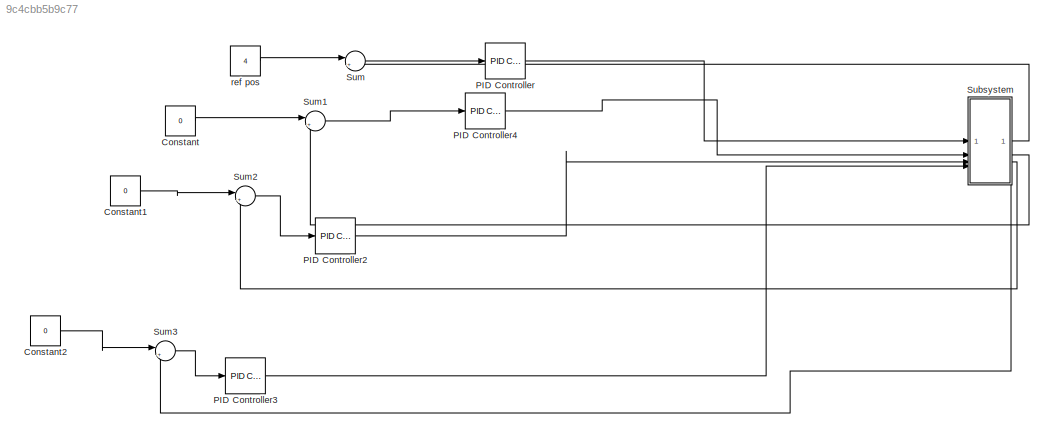
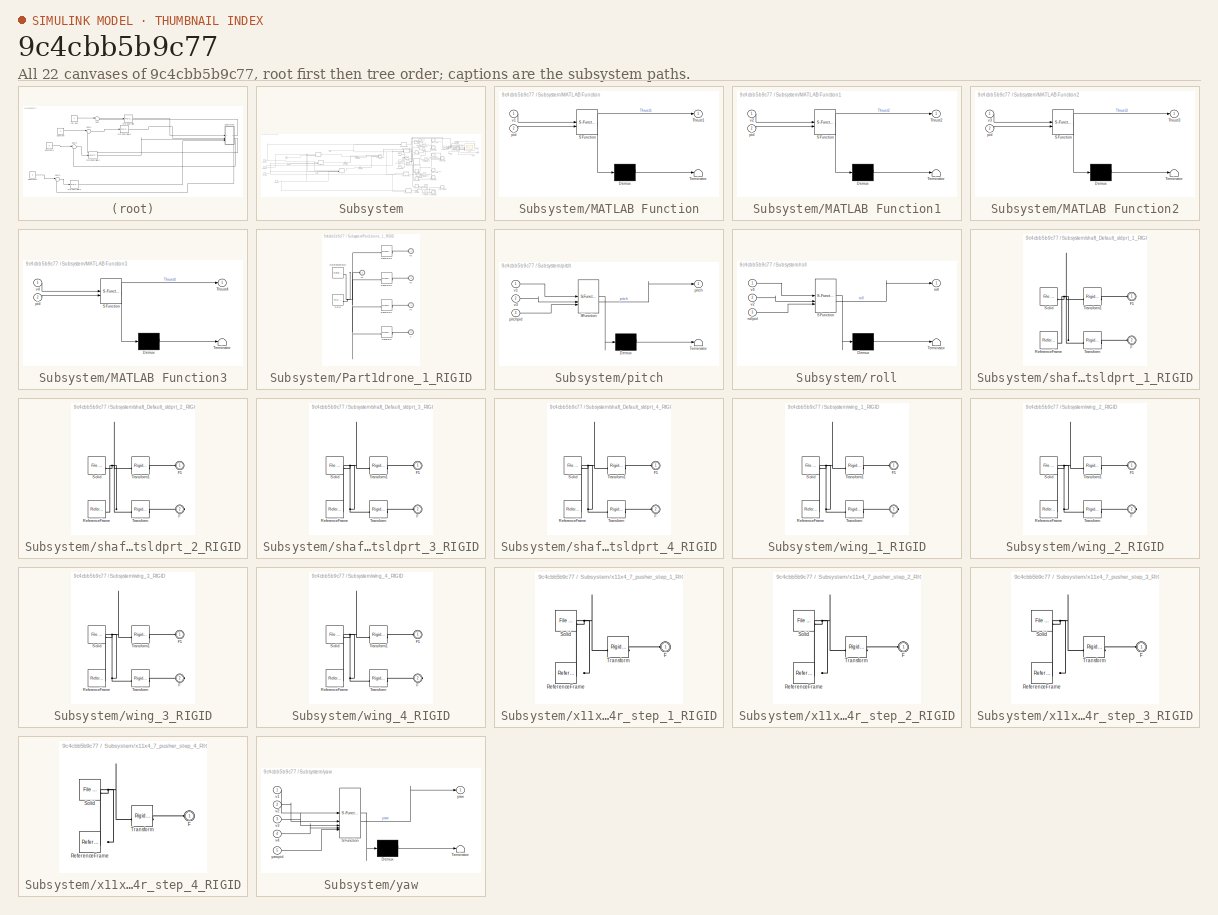
[diagram: thumbnail index - all 22 canvases of the model, root first then tree order]
MODEL slx_9c4cbb5b9c77
KIND model
CONFIG AbsTol = auto
CONFIG EnableMultiTasking = off
CONFIG FixedStep = auto
CONFIG MaxStep = auto
CONFIG MinStep = auto
CONFIG RelTol = 1e-3
CONFIG SampleTimeConstraint = Unconstrained
CONFIG SolverName = VariableStepAuto
CONFIG StartTime = 0.0
CONFIG StopTime = 10
WORKSPACE source: external: MATLAB File  (data not in archive)
BLOCK [Constant] Constant
  Value = 0
BLOCK [Constant] Constant1
  Value = 0
BLOCK [Constant] Constant2
  Value = 0
BLOCK [Reference] PID Controller  REF=slpidlib/PID Controller
  LibrarySourceBlock = simulink/Continuous/PID Controller
  SourceBlock = slpidlib/PID Controller
  SourceType = PID 1dof
BLOCK [Reference] PID Controller2  REF=slpidlib/PID Controller
  LibrarySourceBlock = simulink/Continuous/PID Controller
  SourceBlock = slpidlib/PID Controller
  SourceType = PID 1dof
BLOCK [Reference] PID Controller3  REF=slpidlib/PID Controller
  LibrarySourceBlock = simulink/Continuous/PID Controller
  SourceBlock = slpidlib/PID Controller
  SourceType = PID 1dof
BLOCK [Reference] PID Controller4  REF=slpidlib/PID Controller
  LibrarySourceBlock = simulink/Continuous/PID Controller
  SourceBlock = slpidlib/PID Controller
  SourceType = PID 1dof
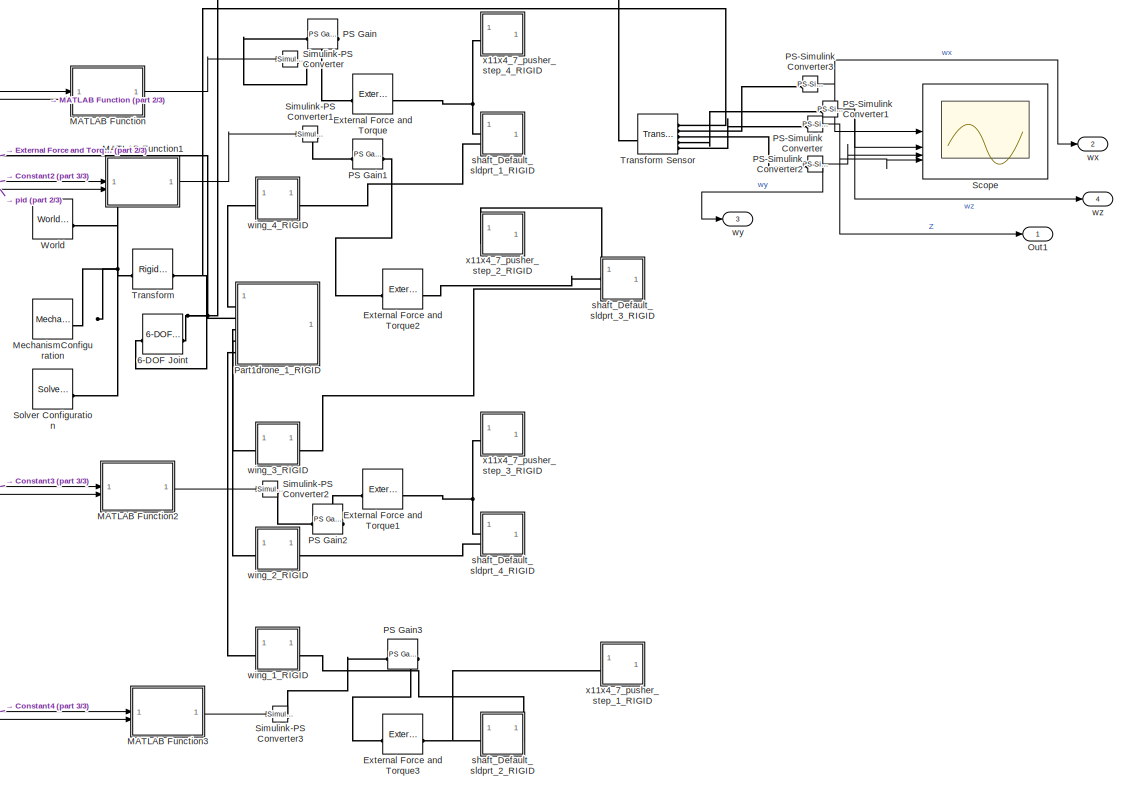
[diagram: Subsystem - part 1/3, right side, full height]
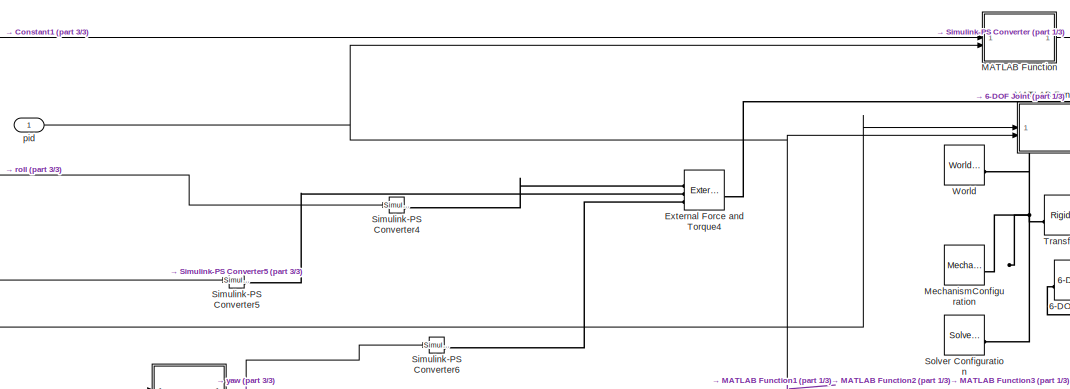
[diagram: Subsystem - part 2/3, central region]
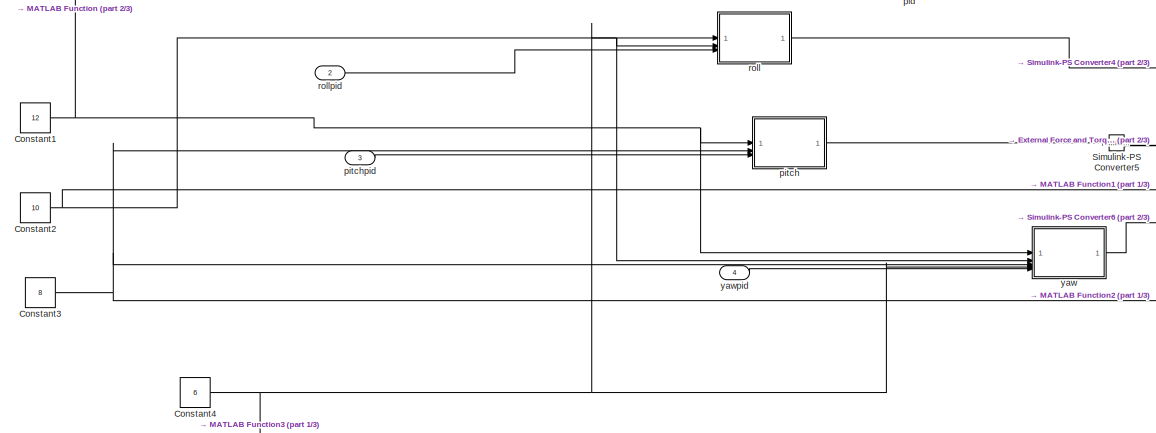
[diagram: Subsystem - part 3/3, middle left region]
BLOCK [SubSystem] Subsystem
BLOCK [Reference] Subsystem/6-DOF Joint  REF=sm_lib/Joints/6-DOF Joint
  SourceBlock = sm_lib/Joints/6-DOF Joint
  SourceType = 6-DOF Joint
BLOCK [Constant] Subsystem/Constant1
  Value = 12
BLOCK [Constant] Subsystem/Constant2
  Value = 10
BLOCK [Constant] Subsystem/Constant3
  Value = 8
BLOCK [Constant] Subsystem/Constant4
  Value = 6
BLOCK [Reference] Subsystem/External Force and Torque  REF=sm_lib/Forces and
Torques/External Force
and Torque
  SourceBlock = sm_lib/Forces and\nTorques/External Force\nand Torque
  SourceType = External Force\nand Torque
BLOCK [Reference] Subsystem/External Force and Torque1  REF=sm_lib/Forces and
Torques/External Force
and Torque
  SourceBlock = sm_lib/Forces and\nTorques/External Force\nand Torque
  SourceType = External Force\nand Torque
BLOCK [Reference] Subsystem/External Force and Torque2  REF=sm_lib/Forces and
Torques/External Force
and Torque
  SourceBlock = sm_lib/Forces and\nTorques/External Force\nand Torque
  SourceType = External Force\nand Torque
BLOCK [Reference] Subsystem/External Force and Torque3  REF=sm_lib/Forces and
Torques/External Force
and Torque
  SourceBlock = sm_lib/Forces and\nTorques/External Force\nand Torque
  SourceType = External Force\nand Torque
BLOCK [Reference] Subsystem/External Force and Torque4  REF=sm_lib/Forces and
Torques/External Force
and Torque
  SourceBlock = sm_lib/Forces and\nTorques/External Force\nand Torque
  SourceType = External Force\nand Torque
BLOCK [SubSystem] Subsystem/MATLAB Function
  ErrorFcn = Stateflow.Translate.translate
  PermitHierarchicalResolution = ExplicitOnly
  SFBlockType = MATLAB Function
  TreatAsAtomicUnit = on
BLOCK [Demux] Subsystem/MATLAB Function/ Demux 
  Outputs = 1
BLOCK [S-Function] Subsystem/MATLAB Function/ SFunction 
  EnableBusSupport = on
  FunctionName = sf_sfun
  PortCounts = [2 2]
  SFcnIsStateOwnerBlock = off
  SFunctionDeploymentMode = off
  Tag = Stateflow S-Function 2
BLOCK [Terminator] Subsystem/MATLAB Function/ Terminator 
BLOCK [Outport] Subsystem/MATLAB Function/Thrust1
BLOCK [Inport] Subsystem/MATLAB Function/pid
  Port = 2
BLOCK [Inport] Subsystem/MATLAB Function/v1
BLOCK [SubSystem] Subsystem/MATLAB Function1
  ErrorFcn = Stateflow.Translate.translate
  PermitHierarchicalResolution = ExplicitOnly
  SFBlockType = MATLAB Function
  TreatAsAtomicUnit = on
BLOCK [Demux] Subsystem/MATLAB Function1/ Demux 
  Outputs = 1
BLOCK [S-Function] Subsystem/MATLAB Function1/ SFunction 
  EnableBusSupport = on
  FunctionName = sf_sfun
  PortCounts = [2 2]
  SFcnIsStateOwnerBlock = off
  SFunctionDeploymentMode = off
  Tag = Stateflow S-Function 1
BLOCK [Terminator] Subsystem/MATLAB Function1/ Terminator 
BLOCK [Outport] Subsystem/MATLAB Function1/Thrust2
BLOCK [Inport] Subsystem/MATLAB Function1/pid
  Port = 2
BLOCK [Inport] Subsystem/MATLAB Function1/v2
BLOCK [SubSystem] Subsystem/MATLAB Function2
  ErrorFcn = Stateflow.Translate.translate
  PermitHierarchicalResolution = ExplicitOnly
  SFBlockType = MATLAB Function
  TreatAsAtomicUnit = on
BLOCK [Demux] Subsystem/MATLAB Function2/ Demux 
  Outputs = 1
BLOCK [S-Function] Subsystem/MATLAB Function2/ SFunction 
  EnableBusSupport = on
  FunctionName = sf_sfun
  PortCounts = [2 2]
  SFcnIsStateOwnerBlock = off
  SFunctionDeploymentMode = off
  Tag = Stateflow S-Function 3
BLOCK [Terminator] Subsystem/MATLAB Function2/ Terminator 
BLOCK [Outport] Subsystem/MATLAB Function2/Thrust3
BLOCK [Inport] Subsystem/MATLAB Function2/pid
  Port = 2
BLOCK [Inport] Subsystem/MATLAB Function2/v3
BLOCK [SubSystem] Subsystem/MATLAB Function3
  ErrorFcn = Stateflow.Translate.translate
  PermitHierarchicalResolution = ExplicitOnly
  SFBlockType = MATLAB Function
  TreatAsAtomicUnit = on
BLOCK [Demux] Subsystem/MATLAB Function3/ Demux 
  Outputs = 1
BLOCK [S-Function] Subsystem/MATLAB Function3/ SFunction 
  EnableBusSupport = on
  FunctionName = sf_sfun
  PortCounts = [2 2]
  SFcnIsStateOwnerBlock = off
  SFunctionDeploymentMode = off
  Tag = Stateflow S-Function 4
BLOCK [Terminator] Subsystem/MATLAB Function3/ Terminator 
BLOCK [Outport] Subsystem/MATLAB Function3/Thrust4
BLOCK [Inport] Subsystem/MATLAB Function3/pid
  Port = 2
BLOCK [Inport] Subsystem/MATLAB Function3/v4
BLOCK [Reference] Subsystem/MechanismConfiguration  REF=sm_lib/Utilities/Mechanism
Configuration
  SourceBlock = sm_lib/Utilities/Mechanism\nConfiguration
  SourceType = Mechanism\nConfiguration
BLOCK [Outport] Subsystem/Out1
BLOCK [Reference] Subsystem/PS Gain  REF=fl_lib/Physical Signals/Functions/PS Gain
  SourceBlock = fl_lib/Physical Signals/Functions/PS Gain
  SourceType = PS Gain
BLOCK [Reference] Subsystem/PS Gain1  REF=fl_lib/Physical Signals/Functions/PS Gain
  SourceBlock = fl_lib/Physical Signals/Functions/PS Gain
  SourceType = PS Gain
BLOCK [Reference] Subsystem/PS Gain2  REF=fl_lib/Physical Signals/Functions/PS Gain
  SourceBlock = fl_lib/Physical Signals/Functions/PS Gain
  SourceType = PS Gain
BLOCK [Reference] Subsystem/PS Gain3  REF=fl_lib/Physical Signals/Functions/PS Gain
  SourceBlock = fl_lib/Physical Signals/Functions/PS Gain
  SourceType = PS Gain
BLOCK [Reference] Subsystem/PS-Simulink Converter  REF=nesl_utility/PS-Simulink
Converter
  SourceBlock = nesl_utility/PS-Simulink\nConverter
  SourceType = PS-Simulink\nConverter
BLOCK [Reference] Subsystem/PS-Simulink Converter1  REF=nesl_utility/PS-Simulink
Converter
  SourceBlock = nesl_utility/PS-Simulink\nConverter
  SourceType = PS-Simulink\nConverter
BLOCK [Reference] Subsystem/PS-Simulink Converter2  REF=nesl_utility/PS-Simulink
Converter
  SourceBlock = nesl_utility/PS-Simulink\nConverter
  SourceType = PS-Simulink\nConverter
BLOCK [Reference] Subsystem/PS-Simulink Converter3  REF=nesl_utility/PS-Simulink
Converter
  SourceBlock = nesl_utility/PS-Simulink\nConverter
  SourceType = PS-Simulink\nConverter
BLOCK [SubSystem] Subsystem/Part1drone_1_RIGID
BLOCK [PMIOPort] Subsystem/Part1drone_1_RIGID/F
  Port = 5
  Side = Left
BLOCK [PMIOPort] Subsystem/Part1drone_1_RIGID/F1
  Port = 4
  Side = Left
BLOCK [PMIOPort] Subsystem/Part1drone_1_RIGID/F2
  Port = 3
  Side = Left
BLOCK [PMIOPort] Subsystem/Part1drone_1_RIGID/F3
  Side = Left
BLOCK [PMIOPort] Subsystem/Part1drone_1_RIGID/F4
  Port = 2
  Side = Left
BLOCK [Reference] Subsystem/Part1drone_1_RIGID/ReferenceFrame  REF=sm_lib/Frames and
Transforms/Reference
Frame
  SourceBlock = sm_lib/Frames and\nTransforms/Reference\nFrame
  SourceType = Reference\nFrame
BLOCK [Reference] Subsystem/Part1drone_1_RIGID/Solid  REF=sm_lib/Body Elements/File Solid
  SourceBlock = sm_lib/Body Elements/File Solid
  SourceType = File Solid
BLOCK [Reference] Subsystem/Part1drone_1_RIGID/Transform  REF=sm_lib/Frames and
Transforms/Rigid
Transform
  SourceBlock = sm_lib/Frames and\nTransforms/Rigid\nTransform
  SourceType = Rigid\nTransform
BLOCK [Reference] Subsystem/Part1drone_1_RIGID/Transform1  REF=sm_lib/Frames and
Transforms/Rigid
Transform
  SourceBlock = sm_lib/Frames and\nTransforms/Rigid\nTransform
  SourceType = Rigid\nTransform
BLOCK [Reference] Subsystem/Part1drone_1_RIGID/Transform2  REF=sm_lib/Frames and
Transforms/Rigid
Transform
  SourceBlock = sm_lib/Frames and\nTransforms/Rigid\nTransform
  SourceType = Rigid\nTransform
BLOCK [Reference] Subsystem/Part1drone_1_RIGID/Transform3  REF=sm_lib/Frames and
Transforms/Rigid
Transform
  SourceBlock = sm_lib/Frames and\nTransforms/Rigid\nTransform
  SourceType = Rigid\nTransform
BLOCK [Scope] Subsystem/Scope
  Floating = off
  NumInputPorts = 4
  ScopeSpecificationString = Simulink.scopes.TimeScopeBlockCfg('CurrentConfiguration', extmgr.ConfigurationSet(extmgr.Configuration('Core','General UI',true),extmgr.Configuration('Core','Source UI',true),extmgr.Configuration('Sources','WiredSimulink',true),extmgr.Configuration('Visuals','Time Domain',true,'SerializedDisplays',{struct('MinYLimReal','-0.5117','MaxYLimReal','50','YLabelReal','','MinYLimMag','0.00000','MaxYLimMag...<+1398ch>
BLOCK [Reference] Subsystem/Simulink-PS Converter  REF=nesl_utility/Simulink-PS
Converter
  SourceBlock = nesl_utility/Simulink-PS\nConverter
  SourceType = Simulink-PS\nConverter
BLOCK [Reference] Subsystem/Simulink-PS Converter1  REF=nesl_utility/Simulink-PS
Converter
  SourceBlock = nesl_utility/Simulink-PS\nConverter
  SourceType = Simulink-PS\nConverter
BLOCK [Reference] Subsystem/Simulink-PS Converter2  REF=nesl_utility/Simulink-PS
Converter
  SourceBlock = nesl_utility/Simulink-PS\nConverter
  SourceType = Simulink-PS\nConverter
BLOCK [Reference] Subsystem/Simulink-PS Converter3  REF=nesl_utility/Simulink-PS
Converter
  SourceBlock = nesl_utility/Simulink-PS\nConverter
  SourceType = Simulink-PS\nConverter
BLOCK [Reference] Subsystem/Simulink-PS Converter4  REF=nesl_utility/Simulink-PS
Converter
  SourceBlock = nesl_utility/Simulink-PS\nConverter
  SourceType = Simulink-PS\nConverter
BLOCK [Reference] Subsystem/Simulink-PS Converter5  REF=nesl_utility/Simulink-PS
Converter
  SourceBlock = nesl_utility/Simulink-PS\nConverter
  SourceType = Simulink-PS\nConverter
BLOCK [Reference] Subsystem/Simulink-PS Converter6  REF=nesl_utility/Simulink-PS
Converter
  SourceBlock = nesl_utility/Simulink-PS\nConverter
  SourceType = Simulink-PS\nConverter
BLOCK [Reference] Subsystem/Solver Configuration  REF=nesl_utility/Solver
Configuration
  SourceBlock = nesl_utility/Solver\nConfiguration
  SourceType = Solver\nConfiguration
BLOCK [Reference] Subsystem/Transform  REF=sm_lib/Frames and
Transforms/Rigid
Transform
  SourceBlock = sm_lib/Frames and\nTransforms/Rigid\nTransform
  SourceType = Rigid\nTransform
BLOCK [Reference] Subsystem/Transform Sensor  REF=sm_lib/Frames and
Transforms/Transform
Sensor
  SourceBlock = sm_lib/Frames and\nTransforms/Transform\nSensor
  SourceType = Transform\nSensor
BLOCK [Reference] Subsystem/World  REF=sm_lib/Frames and
Transforms/World Frame
  SourceBlock = sm_lib/Frames and\nTransforms/World Frame
  SourceType = World Frame
BLOCK [Inport] Subsystem/pid
BLOCK [SubSystem] Subsystem/pitch
  ErrorFcn = Stateflow.Translate.translate
  PermitHierarchicalResolution = ExplicitOnly
  SFBlockType = MATLAB Function
  TreatAsAtomicUnit = on
BLOCK [Demux] Subsystem/pitch/ Demux 
  Outputs = 1
BLOCK [S-Function] Subsystem/pitch/ SFunction 
  EnableBusSupport = on
  FunctionName = sf_sfun
  PortCounts = [3 2]
  SFcnIsStateOwnerBlock = off
  SFunctionDeploymentMode = off
  Tag = Stateflow S-Function 6
BLOCK [Terminator] Subsystem/pitch/ Terminator 
BLOCK [Outport] Subsystem/pitch/pitch
BLOCK [Inport] Subsystem/pitch/pitchpid
  Port = 3
BLOCK [Inport] Subsystem/pitch/v1
BLOCK [Inport] Subsystem/pitch/v3
  Port = 2
BLOCK [Inport] Subsystem/pitchpid
  Port = 3
BLOCK [SubSystem] Subsystem/roll
  ErrorFcn = Stateflow.Translate.translate
  PermitHierarchicalResolution = ExplicitOnly
  SFBlockType = MATLAB Function
  TreatAsAtomicUnit = on
BLOCK [Demux] Subsystem/roll/ Demux 
  Outputs = 1
BLOCK [S-Function] Subsystem/roll/ SFunction 
  EnableBusSupport = on
  FunctionName = sf_sfun
  PortCounts = [3 2]
  SFcnIsStateOwnerBlock = off
  SFunctionDeploymentMode = off
  Tag = Stateflow S-Function 5
BLOCK [Terminator] Subsystem/roll/ Terminator 
BLOCK [Outport] Subsystem/roll/roll
BLOCK [Inport] Subsystem/roll/rollpid
  Port = 3
BLOCK [Inport] Subsystem/roll/v2
  Port = 2
BLOCK [Inport] Subsystem/roll/v4
BLOCK [Inport] Subsystem/rollpid
  Port = 2
BLOCK [SubSystem] Subsystem/shaft_Default_sldprt_1_RIGID
BLOCK [PMIOPort] Subsystem/shaft_Default_sldprt_1_RIGID/F
  Port = 2
  Side = Left
BLOCK [PMIOPort] Subsystem/shaft_Default_sldprt_1_RIGID/F1
  Side = Left
BLOCK [Reference] Subsystem/shaft_Default_sldprt_1_RIGID/ReferenceFrame  REF=sm_lib/Frames and
Transforms/Reference
Frame
  SourceBlock = sm_lib/Frames and\nTransforms/Reference\nFrame
  SourceType = Reference\nFrame
BLOCK [Reference] Subsystem/shaft_Default_sldprt_1_RIGID/Solid  REF=sm_lib/Body Elements/File Solid
  SourceBlock = sm_lib/Body Elements/File Solid
  SourceType = File Solid
BLOCK [Reference] Subsystem/shaft_Default_sldprt_1_RIGID/Transform  REF=sm_lib/Frames and
Transforms/Rigid
Transform
  SourceBlock = sm_lib/Frames and\nTransforms/Rigid\nTransform
  SourceType = Rigid\nTransform
BLOCK [Reference] Subsystem/shaft_Default_sldprt_1_RIGID/Transform1  REF=sm_lib/Frames and
Transforms/Rigid
Transform
  SourceBlock = sm_lib/Frames and\nTransforms/Rigid\nTransform
  SourceType = Rigid\nTransform
BLOCK [SubSystem] Subsystem/shaft_Default_sldprt_2_RIGID
BLOCK [PMIOPort] Subsystem/shaft_Default_sldprt_2_RIGID/F
  Port = 2
  Side = Right
BLOCK [PMIOPort] Subsystem/shaft_Default_sldprt_2_RIGID/F1
  Side = Left
BLOCK [Reference] Subsystem/shaft_Default_sldprt_2_RIGID/ReferenceFrame  REF=sm_lib/Frames and
Transforms/Reference
Frame
  SourceBlock = sm_lib/Frames and\nTransforms/Reference\nFrame
  SourceType = Reference\nFrame
BLOCK [Reference] Subsystem/shaft_Default_sldprt_2_RIGID/Solid  REF=sm_lib/Body Elements/File Solid
  SourceBlock = sm_lib/Body Elements/File Solid
  SourceType = File Solid
BLOCK [Reference] Subsystem/shaft_Default_sldprt_2_RIGID/Transform  REF=sm_lib/Frames and
Transforms/Rigid
Transform
  SourceBlock = sm_lib/Frames and\nTransforms/Rigid\nTransform
  SourceType = Rigid\nTransform
BLOCK [Reference] Subsystem/shaft_Default_sldprt_2_RIGID/Transform1  REF=sm_lib/Frames and
Transforms/Rigid
Transform
  SourceBlock = sm_lib/Frames and\nTransforms/Rigid\nTransform
  SourceType = Rigid\nTransform
BLOCK [SubSystem] Subsystem/shaft_Default_sldprt_3_RIGID
BLOCK [PMIOPort] Subsystem/shaft_Default_sldprt_3_RIGID/F
  Port = 2
  Side = Left
BLOCK [PMIOPort] Subsystem/shaft_Default_sldprt_3_RIGID/F1
  Side = Left
BLOCK [Reference] Subsystem/shaft_Default_sldprt_3_RIGID/ReferenceFrame  REF=sm_lib/Frames and
Transforms/Reference
Frame
  SourceBlock = sm_lib/Frames and\nTransforms/Reference\nFrame
  SourceType = Reference\nFrame
BLOCK [Reference] Subsystem/shaft_Default_sldprt_3_RIGID/Solid  REF=sm_lib/Body Elements/File Solid
  SourceBlock = sm_lib/Body Elements/File Solid
  SourceType = File Solid
BLOCK [Reference] Subsystem/shaft_Default_sldprt_3_RIGID/Transform  REF=sm_lib/Frames and
Transforms/Rigid
Transform
  SourceBlock = sm_lib/Frames and\nTransforms/Rigid\nTransform
  SourceType = Rigid\nTransform
BLOCK [Reference] Subsystem/shaft_Default_sldprt_3_RIGID/Transform1  REF=sm_lib/Frames and
Transforms/Rigid
Transform
  SourceBlock = sm_lib/Frames and\nTransforms/Rigid\nTransform
  SourceType = Rigid\nTransform
BLOCK [SubSystem] Subsystem/shaft_Default_sldprt_4_RIGID
BLOCK [PMIOPort] Subsystem/shaft_Default_sldprt_4_RIGID/F
  Port = 2
  Side = Left
BLOCK [PMIOPort] Subsystem/shaft_Default_sldprt_4_RIGID/F1
  Side = Left
BLOCK [Reference] Subsystem/shaft_Default_sldprt_4_RIGID/ReferenceFrame  REF=sm_lib/Frames and
Transforms/Reference
Frame
  SourceBlock = sm_lib/Frames and\nTransforms/Reference\nFrame
  SourceType = Reference\nFrame
BLOCK [Reference] Subsystem/shaft_Default_sldprt_4_RIGID/Solid  REF=sm_lib/Body Elements/File Solid
  SourceBlock = sm_lib/Body Elements/File Solid
  SourceType = File Solid
BLOCK [Reference] Subsystem/shaft_Default_sldprt_4_RIGID/Transform  REF=sm_lib/Frames and
Transforms/Rigid
Transform
  SourceBlock = sm_lib/Frames and\nTransforms/Rigid\nTransform
  SourceType = Rigid\nTransform
BLOCK [Reference] Subsystem/shaft_Default_sldprt_4_RIGID/Transform1  REF=sm_lib/Frames and
Transforms/Rigid
Transform
  SourceBlock = sm_lib/Frames and\nTransforms/Rigid\nTransform
  SourceType = Rigid\nTransform
BLOCK [SubSystem] Subsystem/wing_1_RIGID
BLOCK [PMIOPort] Subsystem/wing_1_RIGID/F
  Port = 2
  Side = Right
BLOCK [PMIOPort] Subsystem/wing_1_RIGID/F1
  Side = Left
BLOCK [Reference] Subsystem/wing_1_RIGID/ReferenceFrame  REF=sm_lib/Frames and
Transforms/Reference
Frame
  SourceBlock = sm_lib/Frames and\nTransforms/Reference\nFrame
  SourceType = Reference\nFrame
BLOCK [Reference] Subsystem/wing_1_RIGID/Solid  REF=sm_lib/Body Elements/File Solid
  SourceBlock = sm_lib/Body Elements/File Solid
  SourceType = File Solid
BLOCK [Reference] Subsystem/wing_1_RIGID/Transform  REF=sm_lib/Frames and
Transforms/Rigid
Transform
  SourceBlock = sm_lib/Frames and\nTransforms/Rigid\nTransform
  SourceType = Rigid\nTransform
BLOCK [Reference] Subsystem/wing_1_RIGID/Transform1  REF=sm_lib/Frames and
Transforms/Rigid
Transform
  SourceBlock = sm_lib/Frames and\nTransforms/Rigid\nTransform
  SourceType = Rigid\nTransform
BLOCK [SubSystem] Subsystem/wing_2_RIGID
BLOCK [PMIOPort] Subsystem/wing_2_RIGID/F
  Port = 2
  Side = Right
BLOCK [PMIOPort] Subsystem/wing_2_RIGID/F1
  Side = Left
BLOCK [Reference] Subsystem/wing_2_RIGID/ReferenceFrame  REF=sm_lib/Frames and
Transforms/Reference
Frame
  SourceBlock = sm_lib/Frames and\nTransforms/Reference\nFrame
  SourceType = Reference\nFrame
BLOCK [Reference] Subsystem/wing_2_RIGID/Solid  REF=sm_lib/Body Elements/File Solid
  SourceBlock = sm_lib/Body Elements/File Solid
  SourceType = File Solid
BLOCK [Reference] Subsystem/wing_2_RIGID/Transform  REF=sm_lib/Frames and
Transforms/Rigid
Transform
  SourceBlock = sm_lib/Frames and\nTransforms/Rigid\nTransform
  SourceType = Rigid\nTransform
BLOCK [Reference] Subsystem/wing_2_RIGID/Transform1  REF=sm_lib/Frames and
Transforms/Rigid
Transform
  SourceBlock = sm_lib/Frames and\nTransforms/Rigid\nTransform
  SourceType = Rigid\nTransform
BLOCK [SubSystem] Subsystem/wing_3_RIGID
BLOCK [PMIOPort] Subsystem/wing_3_RIGID/F
  Port = 2
  Side = Right
BLOCK [PMIOPort] Subsystem/wing_3_RIGID/F1
  Side = Left
BLOCK [Reference] Subsystem/wing_3_RIGID/ReferenceFrame  REF=sm_lib/Frames and
Transforms/Reference
Frame
  SourceBlock = sm_lib/Frames and\nTransforms/Reference\nFrame
  SourceType = Reference\nFrame
BLOCK [Reference] Subsystem/wing_3_RIGID/Solid  REF=sm_lib/Body Elements/File Solid
  SourceBlock = sm_lib/Body Elements/File Solid
  SourceType = File Solid
BLOCK [Reference] Subsystem/wing_3_RIGID/Transform  REF=sm_lib/Frames and
Transforms/Rigid
Transform
  SourceBlock = sm_lib/Frames and\nTransforms/Rigid\nTransform
  SourceType = Rigid\nTransform
BLOCK [Reference] Subsystem/wing_3_RIGID/Transform1  REF=sm_lib/Frames and
Transforms/Rigid
Transform
  SourceBlock = sm_lib/Frames and\nTransforms/Rigid\nTransform
  SourceType = Rigid\nTransform
BLOCK [SubSystem] Subsystem/wing_4_RIGID
BLOCK [PMIOPort] Subsystem/wing_4_RIGID/F
  Port = 2
  Side = Right
BLOCK [PMIOPort] Subsystem/wing_4_RIGID/F1
  Side = Left
BLOCK [Reference] Subsystem/wing_4_RIGID/ReferenceFrame  REF=sm_lib/Frames and
Transforms/Reference
Frame
  SourceBlock = sm_lib/Frames and\nTransforms/Reference\nFrame
  SourceType = Reference\nFrame
BLOCK [Reference] Subsystem/wing_4_RIGID/Solid  REF=sm_lib/Body Elements/File Solid
  SourceBlock = sm_lib/Body Elements/File Solid
  SourceType = File Solid
BLOCK [Reference] Subsystem/wing_4_RIGID/Transform  REF=sm_lib/Frames and
Transforms/Rigid
Transform
  SourceBlock = sm_lib/Frames and\nTransforms/Rigid\nTransform
  SourceType = Rigid\nTransform
BLOCK [Reference] Subsystem/wing_4_RIGID/Transform1  REF=sm_lib/Frames and
Transforms/Rigid
Transform
  SourceBlock = sm_lib/Frames and\nTransforms/Rigid\nTransform
  SourceType = Rigid\nTransform
BLOCK [Outport] Subsystem/wx
  Port = 2
BLOCK [Outport] Subsystem/wy
  Port = 3
BLOCK [Outport] Subsystem/wz
  Port = 4
BLOCK [SubSystem] Subsystem/x11x4_7_pusher_step_1_RIGID
BLOCK [PMIOPort] Subsystem/x11x4_7_pusher_step_1_RIGID/F
  Side = Left
BLOCK [Reference] Subsystem/x11x4_7_pusher_step_1_RIGID/ReferenceFrame  REF=sm_lib/Frames and
Transforms/Reference
Frame
  SourceBlock = sm_lib/Frames and\nTransforms/Reference\nFrame
  SourceType = Reference\nFrame
BLOCK [Reference] Subsystem/x11x4_7_pusher_step_1_RIGID/Solid  REF=sm_lib/Body Elements/File Solid
  SourceBlock = sm_lib/Body Elements/File Solid
  SourceType = File Solid
BLOCK [Reference] Subsystem/x11x4_7_pusher_step_1_RIGID/Transform  REF=sm_lib/Frames and
Transforms/Rigid
Transform
  SourceBlock = sm_lib/Frames and\nTransforms/Rigid\nTransform
  SourceType = Rigid\nTransform
BLOCK [SubSystem] Subsystem/x11x4_7_pusher_step_2_RIGID
BLOCK [PMIOPort] Subsystem/x11x4_7_pusher_step_2_RIGID/F
  Side = Left
BLOCK [Reference] Subsystem/x11x4_7_pusher_step_2_RIGID/ReferenceFrame  REF=sm_lib/Frames and
Transforms/Reference
Frame
  SourceBlock = sm_lib/Frames and\nTransforms/Reference\nFrame
  SourceType = Reference\nFrame
BLOCK [Reference] Subsystem/x11x4_7_pusher_step_2_RIGID/Solid  REF=sm_lib/Body Elements/File Solid
  SourceBlock = sm_lib/Body Elements/File Solid
  SourceType = File Solid
BLOCK [Reference] Subsystem/x11x4_7_pusher_step_2_RIGID/Transform  REF=sm_lib/Frames and
Transforms/Rigid
Transform
  SourceBlock = sm_lib/Frames and\nTransforms/Rigid\nTransform
  SourceType = Rigid\nTransform
BLOCK [SubSystem] Subsystem/x11x4_7_pusher_step_3_RIGID
BLOCK [PMIOPort] Subsystem/x11x4_7_pusher_step_3_RIGID/F
  Side = Left
BLOCK [Reference] Subsystem/x11x4_7_pusher_step_3_RIGID/ReferenceFrame  REF=sm_lib/Frames and
Transforms/Reference
Frame
  SourceBlock = sm_lib/Frames and\nTransforms/Reference\nFrame
  SourceType = Reference\nFrame
BLOCK [Reference] Subsystem/x11x4_7_pusher_step_3_RIGID/Solid  REF=sm_lib/Body Elements/File Solid
  SourceBlock = sm_lib/Body Elements/File Solid
  SourceType = File Solid
BLOCK [Reference] Subsystem/x11x4_7_pusher_step_3_RIGID/Transform  REF=sm_lib/Frames and
Transforms/Rigid
Transform
  SourceBlock = sm_lib/Frames and\nTransforms/Rigid\nTransform
  SourceType = Rigid\nTransform
BLOCK [SubSystem] Subsystem/x11x4_7_pusher_step_4_RIGID
BLOCK [PMIOPort] Subsystem/x11x4_7_pusher_step_4_RIGID/F
  Side = Left
BLOCK [Reference] Subsystem/x11x4_7_pusher_step_4_RIGID/ReferenceFrame  REF=sm_lib/Frames and
Transforms/Reference
Frame
  SourceBlock = sm_lib/Frames and\nTransforms/Reference\nFrame
  SourceType = Reference\nFrame
BLOCK [Reference] Subsystem/x11x4_7_pusher_step_4_RIGID/Solid  REF=sm_lib/Body Elements/File Solid
  SourceBlock = sm_lib/Body Elements/File Solid
  SourceType = File Solid
BLOCK [Reference] Subsystem/x11x4_7_pusher_step_4_RIGID/Transform  REF=sm_lib/Frames and
Transforms/Rigid
Transform
  SourceBlock = sm_lib/Frames and\nTransforms/Rigid\nTransform
  SourceType = Rigid\nTransform
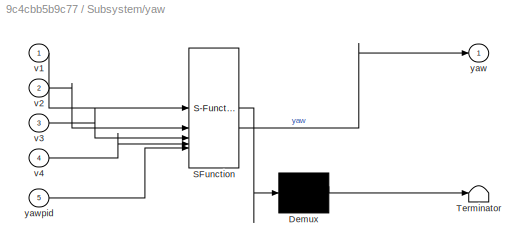
BLOCK [SubSystem] Subsystem/yaw
  ErrorFcn = Stateflow.Translate.translate
  PermitHierarchicalResolution = ExplicitOnly
  SFBlockType = MATLAB Function
  TreatAsAtomicUnit = on
BLOCK [Demux] Subsystem/yaw/ Demux 
  Outputs = 1
BLOCK [S-Function] Subsystem/yaw/ SFunction 
  EnableBusSupport = on
  FunctionName = sf_sfun
  PortCounts = [5 2]
  SFcnIsStateOwnerBlock = off
  SFunctionDeploymentMode = off
  Tag = Stateflow S-Function 7
BLOCK [Terminator] Subsystem/yaw/ Terminator 
BLOCK [Inport] Subsystem/yaw/v1
BLOCK [Inport] Subsystem/yaw/v2
  Port = 2
BLOCK [Inport] Subsystem/yaw/v3
  Port = 3
BLOCK [Inport] Subsystem/yaw/v4
  Port = 4
BLOCK [Outport] Subsystem/yaw/yaw
BLOCK [Inport] Subsystem/yaw/yawpid
  Port = 5
BLOCK [Inport] Subsystem/yawpid
  Port = 4
BLOCK [Sum] Sum
  Inputs = |+-
BLOCK [Sum] Sum1
  Inputs = |+-
BLOCK [Sum] Sum2
  Inputs = |+-
BLOCK [Sum] Sum3
  Inputs = |+-
BLOCK [Constant] ref pos
  Value = 4
LINE Constant1:1 -> Sum2:1
LINE Constant2:1 -> Sum3:1
LINE Constant:1 -> Sum1:1
LINE PID Controller2:1 -> Subsystem:3
LINE PID Controller3:1 -> Subsystem:4
LINE PID Controller4:1 -> Subsystem:2
LINE PID Controller:1 -> Subsystem:1
NET Subsystem/Constant1:1 -> Subsystem/MATLAB Function:1, Subsystem/pitch:1, Subsystem/yaw:1
NET Subsystem/Constant2:1 -> Subsystem/MATLAB Function1:1, Subsystem/roll:2, Subsystem/yaw:2
NET Subsystem/Constant3:1 -> Subsystem/MATLAB Function2:1, Subsystem/pitch:2, Subsystem/yaw:3
NET Subsystem/Constant4:1 -> Subsystem/MATLAB Function3:1, Subsystem/roll:1, Subsystem/yaw:4
LINE Subsystem/MATLAB Function1:1 -> Subsystem/Simulink-PS Converter1:1
LINE Subsystem/MATLAB Function2:1 -> Subsystem/Simulink-PS Converter2:1
LINE Subsystem/MATLAB Function3:1 -> Subsystem/Simulink-PS Converter3:1
LINE Subsystem/MATLAB Function:1 -> Subsystem/Simulink-PS Converter:1
NET Subsystem/PS-Simulink Converter1:1 -> Subsystem/Scope:2, Subsystem/wz:1
NET Subsystem/PS-Simulink Converter2:1 -> Subsystem/Scope:3, Subsystem/wy:1
NET Subsystem/PS-Simulink Converter3:1 -> Subsystem/Scope:1, Subsystem/wx:1
NET Subsystem/PS-Simulink Converter:1 -> Subsystem/Out1:1, Subsystem/Scope:4
NET Subsystem/pid:1 -> Subsystem/MATLAB Function1:2, Subsystem/MATLAB Function2:2, Subsystem/MATLAB Function3:2, Subsystem/MATLAB Function:2
LINE Subsystem/pitch:1 -> Subsystem/Simulink-PS Converter5:1
LINE Subsystem/pitchpid:1 -> Subsystem/pitch:3
LINE Subsystem/roll:1 -> Subsystem/Simulink-PS Converter4:1
LINE Subsystem/rollpid:1 -> Subsystem/roll:3
LINE Subsystem/yaw:1 -> Subsystem/Simulink-PS Converter6:1
LINE Subsystem/yawpid:1 -> Subsystem/yaw:5
LINE Subsystem:1 -> Sum:2
LINE Subsystem:2 -> Sum1:2
LINE Subsystem:3 -> Sum2:2
LINE Subsystem:4 -> Sum3:2
LINE Sum1:1 -> PID Controller4:1
LINE Sum2:1 -> PID Controller2:1
LINE Sum3:1 -> PID Controller3:1
LINE Sum:1 -> PID Controller:1
LINE ref pos:1 -> Sum:1
PNET net1: Subsystem/6-DOF Joint:LConn1 -- Subsystem/Transform Sensor:RConn1 -- Subsystem/Transform:RConn1
PNET net2: Subsystem/6-DOF Joint:RConn1 -- Subsystem/External Force and Torque4:RConn1 -- Subsystem/Part1drone_1_RIGID:LConn2 -- Subsystem/Transform Sensor:LConn1
PLINE Subsystem/External Force and Torque1:LConn1 -- Subsystem/PS Gain2:RConn1
PNET net3: Subsystem/External Force and Torque1:RConn1 -- Subsystem/shaft_Default_sldprt_4_RIGID:LConn1 -- Subsystem/x11x4_7_pusher_step_3_RIGID:LConn1
PLINE Subsystem/External Force and Torque2:LConn1 -- Subsystem/PS Gain1:RConn1
PNET net4: Subsystem/External Force and Torque2:RConn1 -- Subsystem/shaft_Default_sldprt_3_RIGID:LConn1 -- Subsystem/x11x4_7_pusher_step_2_RIGID:LConn1
PLINE Subsystem/External Force and Torque3:LConn1 -- Subsystem/PS Gain3:RConn1
PNET net5: Subsystem/External Force and Torque3:RConn1 -- Subsystem/shaft_Default_sldprt_2_RIGID:LConn1 -- Subsystem/x11x4_7_pusher_step_1_RIGID:LConn1
PLINE Subsystem/External Force and Torque4:LConn1 -- Subsystem/Simulink-PS Converter4:RConn1
PLINE Subsystem/External Force and Torque4:LConn2 -- Subsystem/Simulink-PS Converter5:RConn1
PLINE Subsystem/External Force and Torque4:LConn3 -- Subsystem/Simulink-PS Converter6:RConn1
PLINE Subsystem/External Force and Torque:LConn1 -- Subsystem/PS Gain:RConn1
PNET net6: Subsystem/External Force and Torque:RConn1 -- Subsystem/shaft_Default_sldprt_1_RIGID:LConn1 -- Subsystem/x11x4_7_pusher_step_4_RIGID:LConn1
PNET net7: Subsystem/MechanismConfiguration:RConn1 -- Subsystem/Solver Configuration:RConn1 -- Subsystem/Transform:LConn1 -- Subsystem/World:RConn1
PLINE Subsystem/PS Gain1:LConn1 -- Subsystem/Simulink-PS Converter1:RConn1
PLINE Subsystem/PS Gain2:LConn1 -- Subsystem/Simulink-PS Converter2:RConn1
PLINE Subsystem/PS Gain3:LConn1 -- Subsystem/Simulink-PS Converter3:RConn1
PLINE Subsystem/PS Gain:LConn1 -- Subsystem/Simulink-PS Converter:RConn1
PLINE Subsystem/PS-Simulink Converter1:LConn1 -- Subsystem/Transform Sensor:RConn4
PLINE Subsystem/PS-Simulink Converter2:LConn1 -- Subsystem/Transform Sensor:RConn3
PLINE Subsystem/PS-Simulink Converter3:LConn1 -- Subsystem/Transform Sensor:RConn2
PLINE Subsystem/PS-Simulink Converter:LConn1 -- Subsystem/Transform Sensor:RConn5
PLINE Subsystem/Part1drone_1_RIGID/F1:RConn1 -- Subsystem/Part1drone_1_RIGID/Transform1:RConn1
PLINE Subsystem/Part1drone_1_RIGID/F2:RConn1 -- Subsystem/Part1drone_1_RIGID/Transform2:RConn1
PLINE Subsystem/Part1drone_1_RIGID/F3:RConn1 -- Subsystem/Part1drone_1_RIGID/Transform3:RConn1
PNET net8: Subsystem/Part1drone_1_RIGID/F4:RConn1 -- Subsystem/Part1drone_1_RIGID/ReferenceFrame:RConn1 -- Subsystem/Part1drone_1_RIGID/Solid:RConn1 -- Subsystem/Part1drone_1_RIGID/Transform1:LConn1 -- Subsystem/Part1drone_1_RIGID/Transform2:LConn1 -- Subsystem/Part1drone_1_RIGID/Transform3:LConn1 -- Subsystem/Part1drone_1_RIGID/Transform:LConn1
PLINE Subsystem/Part1drone_1_RIGID/F:RConn1 -- Subsystem/Part1drone_1_RIGID/Transform:RConn1
PLINE Subsystem/Part1drone_1_RIGID:LConn1 -- Subsystem/wing_4_RIGID:LConn1
PLINE Subsystem/Part1drone_1_RIGID:LConn3 -- Subsystem/wing_3_RIGID:LConn1
PLINE Subsystem/Part1drone_1_RIGID:LConn4 -- Subsystem/wing_2_RIGID:LConn1
PLINE Subsystem/Part1drone_1_RIGID:LConn5 -- Subsystem/wing_1_RIGID:LConn1
PLINE Subsystem/shaft_Default_sldprt_1_RIGID/F1:RConn1 -- Subsystem/shaft_Default_sldprt_1_RIGID/Transform1:RConn1
PLINE Subsystem/shaft_Default_sldprt_1_RIGID/F:RConn1 -- Subsystem/shaft_Default_sldprt_1_RIGID/Transform:RConn1
PNET net9: Subsystem/shaft_Default_sldprt_1_RIGID/ReferenceFrame:RConn1 -- Subsystem/shaft_Default_sldprt_1_RIGID/Solid:RConn1 -- Subsystem/shaft_Default_sldprt_1_RIGID/Transform1:LConn1 -- Subsystem/shaft_Default_sldprt_1_RIGID/Transform:LConn1
PLINE Subsystem/shaft_Default_sldprt_1_RIGID:LConn2 -- Subsystem/wing_4_RIGID:RConn1
PLINE Subsystem/shaft_Default_sldprt_2_RIGID/F1:RConn1 -- Subsystem/shaft_Default_sldprt_2_RIGID/Transform1:RConn1
PLINE Subsystem/shaft_Default_sldprt_2_RIGID/F:RConn1 -- Subsystem/shaft_Default_sldprt_2_RIGID/Transform:RConn1
PNET net10: Subsystem/shaft_Default_sldprt_2_RIGID/ReferenceFrame:RConn1 -- Subsystem/shaft_Default_sldprt_2_RIGID/Solid:RConn1 -- Subsystem/shaft_Default_sldprt_2_RIGID/Transform1:LConn1 -- Subsystem/shaft_Default_sldprt_2_RIGID/Transform:LConn1
PLINE Subsystem/shaft_Default_sldprt_2_RIGID:RConn1 -- Subsystem/wing_1_RIGID:RConn1
PLINE Subsystem/shaft_Default_sldprt_3_RIGID/F1:RConn1 -- Subsystem/shaft_Default_sldprt_3_RIGID/Transform1:RConn1
PLINE Subsystem/shaft_Default_sldprt_3_RIGID/F:RConn1 -- Subsystem/shaft_Default_sldprt_3_RIGID/Transform:RConn1
PNET net11: Subsystem/shaft_Default_sldprt_3_RIGID/ReferenceFrame:RConn1 -- Subsystem/shaft_Default_sldprt_3_RIGID/Solid:RConn1 -- Subsystem/shaft_Default_sldprt_3_RIGID/Transform1:LConn1 -- Subsystem/shaft_Default_sldprt_3_RIGID/Transform:LConn1
PLINE Subsystem/shaft_Default_sldprt_3_RIGID:LConn2 -- Subsystem/wing_3_RIGID:RConn1
PLINE Subsystem/shaft_Default_sldprt_4_RIGID/F1:RConn1 -- Subsystem/shaft_Default_sldprt_4_RIGID/Transform1:RConn1
PLINE Subsystem/shaft_Default_sldprt_4_RIGID/F:RConn1 -- Subsystem/shaft_Default_sldprt_4_RIGID/Transform:RConn1
PNET net12: Subsystem/shaft_Default_sldprt_4_RIGID/ReferenceFrame:RConn1 -- Subsystem/shaft_Default_sldprt_4_RIGID/Solid:RConn1 -- Subsystem/shaft_Default_sldprt_4_RIGID/Transform1:LConn1 -- Subsystem/shaft_Default_sldprt_4_RIGID/Transform:LConn1
PLINE Subsystem/shaft_Default_sldprt_4_RIGID:LConn2 -- Subsystem/wing_2_RIGID:RConn1
PLINE Subsystem/wing_1_RIGID/F1:RConn1 -- Subsystem/wing_1_RIGID/Transform1:RConn1
PLINE Subsystem/wing_1_RIGID/F:RConn1 -- Subsystem/wing_1_RIGID/Transform:RConn1
PNET net13: Subsystem/wing_1_RIGID/ReferenceFrame:RConn1 -- Subsystem/wing_1_RIGID/Solid:RConn1 -- Subsystem/wing_1_RIGID/Transform1:LConn1 -- Subsystem/wing_1_RIGID/Transform:LConn1
PLINE Subsystem/wing_2_RIGID/F1:RConn1 -- Subsystem/wing_2_RIGID/Transform1:RConn1
PLINE Subsystem/wing_2_RIGID/F:RConn1 -- Subsystem/wing_2_RIGID/Transform:RConn1
PNET net14: Subsystem/wing_2_RIGID/ReferenceFrame:RConn1 -- Subsystem/wing_2_RIGID/Solid:RConn1 -- Subsystem/wing_2_RIGID/Transform1:LConn1 -- Subsystem/wing_2_RIGID/Transform:LConn1
PLINE Subsystem/wing_3_RIGID/F1:RConn1 -- Subsystem/wing_3_RIGID/Transform1:RConn1
PLINE Subsystem/wing_3_RIGID/F:RConn1 -- Subsystem/wing_3_RIGID/Transform:RConn1
PNET net15: Subsystem/wing_3_RIGID/ReferenceFrame:RConn1 -- Subsystem/wing_3_RIGID/Solid:RConn1 -- Subsystem/wing_3_RIGID/Transform1:LConn1 -- Subsystem/wing_3_RIGID/Transform:LConn1
PLINE Subsystem/wing_4_RIGID/F1:RConn1 -- Subsystem/wing_4_RIGID/Transform1:RConn1
PLINE Subsystem/wing_4_RIGID/F:RConn1 -- Subsystem/wing_4_RIGID/Transform:RConn1
PNET net16: Subsystem/wing_4_RIGID/ReferenceFrame:RConn1 -- Subsystem/wing_4_RIGID/Solid:RConn1 -- Subsystem/wing_4_RIGID/Transform1:LConn1 -- Subsystem/wing_4_RIGID/Transform:LConn1
PLINE Subsystem/x11x4_7_pusher_step_1_RIGID/F:RConn1 -- Subsystem/x11x4_7_pusher_step_1_RIGID/Transform:RConn1
PNET net17: Subsystem/x11x4_7_pusher_step_1_RIGID/ReferenceFrame:RConn1 -- Subsystem/x11x4_7_pusher_step_1_RIGID/Solid:RConn1 -- Subsystem/x11x4_7_pusher_step_1_RIGID/Transform:LConn1
PLINE Subsystem/x11x4_7_pusher_step_2_RIGID/F:RConn1 -- Subsystem/x11x4_7_pusher_step_2_RIGID/Transform:RConn1
PNET net18: Subsystem/x11x4_7_pusher_step_2_RIGID/ReferenceFrame:RConn1 -- Subsystem/x11x4_7_pusher_step_2_RIGID/Solid:RConn1 -- Subsystem/x11x4_7_pusher_step_2_RIGID/Transform:LConn1
PLINE Subsystem/x11x4_7_pusher_step_3_RIGID/F:RConn1 -- Subsystem/x11x4_7_pusher_step_3_RIGID/Transform:RConn1
PNET net19: Subsystem/x11x4_7_pusher_step_3_RIGID/ReferenceFrame:RConn1 -- Subsystem/x11x4_7_pusher_step_3_RIGID/Solid:RConn1 -- Subsystem/x11x4_7_pusher_step_3_RIGID/Transform:LConn1
PLINE Subsystem/x11x4_7_pusher_step_4_RIGID/F:RConn1 -- Subsystem/x11x4_7_pusher_step_4_RIGID/Transform:RConn1
PNET net20: Subsystem/x11x4_7_pusher_step_4_RIGID/ReferenceFrame:RConn1 -- Subsystem/x11x4_7_pusher_step_4_RIGID/Solid:RConn1 -- Subsystem/x11x4_7_pusher_step_4_RIGID/Transform:LConn1
note: NET lines group one-source signal fan-out (src -> all destinations, sorted); 1:1 wires keep LINE; PNET lines group multi-terminal physical nets as a canonical sorted terminal list (undirected conserving connections); 2-terminal nets keep the pairwise PLINE form
CHART Subsystem/MATLAB Function1 states=1 transitions=1
  STATE_LABEL 'eML_blk_kernel()'
  STATE_LABEL 'SCRIPT:\nfunction Thrust2 = fcn(v2,pid)\n\nThrust2 =0.01546*((23.3*3.14)^2)*(v2^2)*pid;\n \nend\n\n'
CHART Subsystem/MATLAB Function states=1 transitions=1
  STATE_LABEL 'eML_blk_kernel()'
  STATE_LABEL 'SCRIPT:\nfunction Thrust1 = fcn(v1,pid)\n\nThrust1 =0.01546*((23.3*3.14)^2)*(v1^2)*pid;\n \nend\n'
CHART Subsystem/MATLAB Function2 states=1 transitions=1
  STATE_LABEL 'eML_blk_kernel()'
  STATE_LABEL 'SCRIPT:\nfunction Thrust3 = fcn(v3,pid)\n\nThrust3 =0.01546*((23.3*3.14)^2)*(v3^2)*pid;\n \nend\n\n'
CHART Subsystem/MATLAB Function3 states=1 transitions=1
  STATE_LABEL 'eML_blk_kernel()'
  STATE_LABEL 'SCRIPT:\nfunction Thrust4 = fcn(v4, pid)\n\nThrust4 =0.01546*((23.3*3.14)^2)*(v4^2)*pid;\n \n\nend\n\n'
CHART Subsystem/roll states=1 transitions=1
  STATE_LABEL 'eML_blk_kernel()'
  STATE_LABEL 'SCRIPT:\nfunction roll = fcn(v4,v2,rollpid)\n\nroll = 0.01546*(23.33*3.14)^2*(v4^2-v2^2)*rollpid;\nend'
CHART Subsystem/pitch states=1 transitions=1
  STATE_LABEL 'eML_blk_kernel()'
  STATE_LABEL 'SCRIPT:\nfunction pitch = fcn(v1,v3, pitchpid)\n\npitch = 0.01546*(23.33*3.14)^2*(v1^2-v3^2)*pitchpid;\nend\n'
CHART Subsystem/yaw states=1 transitions=1
  STATE_LABEL 'eML_blk_kernel()'
  STATE_LABEL 'SCRIPT:\nfunction yaw = fcn(v1,v2, v3, v4, yawpid)\n\nyaw = 0.230*(23.33*3.14)^2*(-(v1^2)+v2^2-(v3^2)+v4^2)*yawpid;\nend'
CHART  states=0 transitions=0
CHART  states=0 transitions=0
CHART  states=0 transitions=0
CHART  states=0 transitions=0
CHART  states=0 transitions=0
CHART  states=0 transitions=0
CHART  states=0 transitions=0
